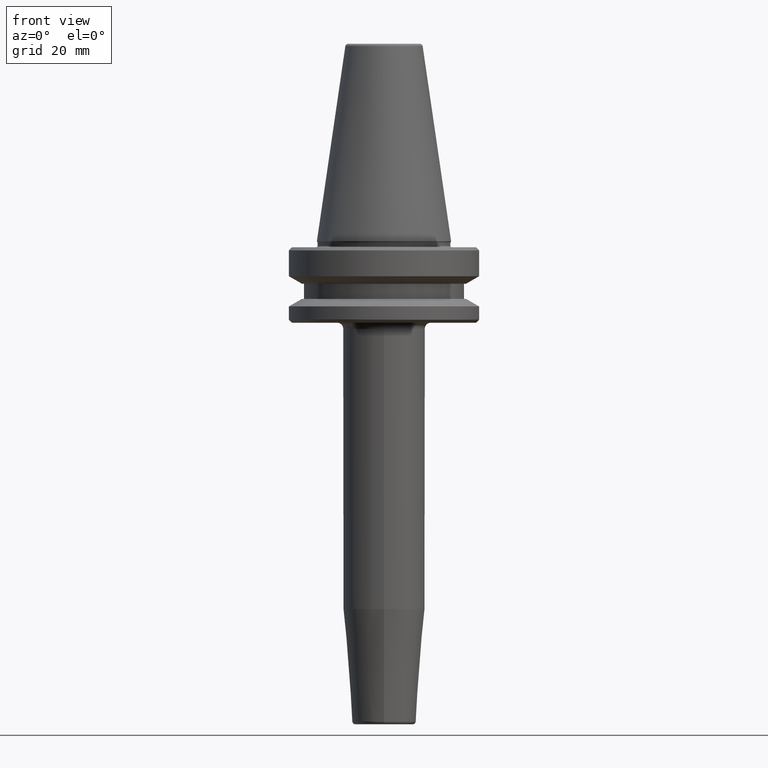
[diagram: clean part render]
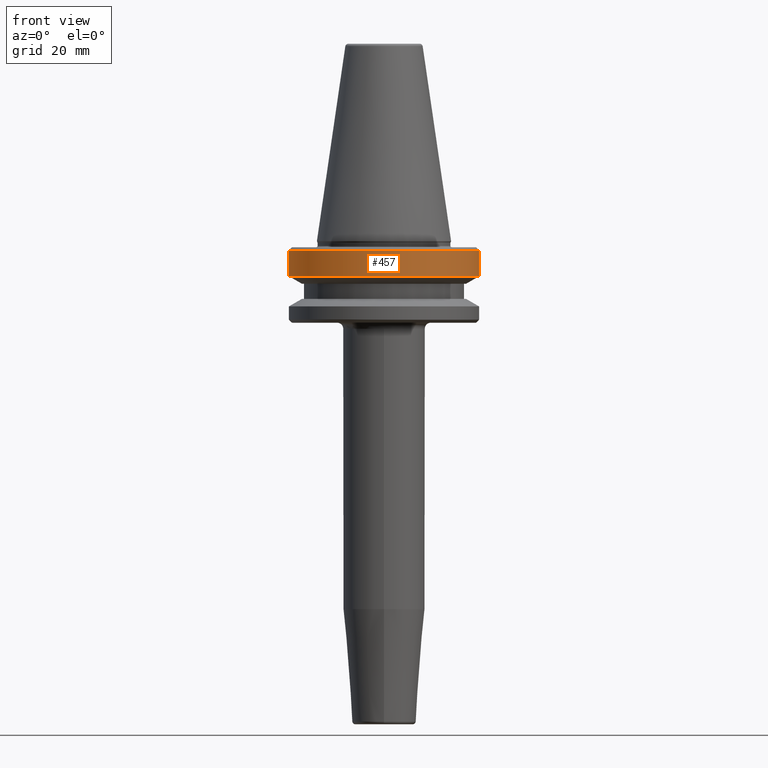
[diagram: same view with one face highlighted and labeled with its STEP entity id]
A machine part, front view. The second image highlights one B-rep face of the part: STEP entity #457.
In plain terms, the highlighted cylindrical surface (partial cylindrical patch) has radius 31.5 mm, axis along (-0, -0, 1).
Its self-contained STEP definition (entity closure, byte-faithful):
#85 = CARTESIAN_POINT ( 'NONE',  ( 0.0000000000000000000, 0.0000000000000000000, -3.165685424949243700 ) ) ;
#98 = CARTESIAN_POINT ( 'NONE',  ( 31.50000000000000000, 0.0000000000000000000, 69.75694866325665100 ) ) ;
#175 = EDGE_CURVE ( 'NONE', #1184, #1096, #1100, .T. ) ;
#215 = EDGE_CURVE ( 'NONE', #742, #900, #764, .T. ) ;
#240 = CARTESIAN_POINT ( 'NONE',  ( -31.49999999999999300, 3.857637417314161900E-015, -3.165685424949243700 ) ) ;
#249 = EDGE_LOOP ( 'NONE', ( #940, #1235, #1112, #560 ) ) ;
#251 = FACE_OUTER_BOUND ( 'NONE', #249, .T. ) ;
#283 = LINE ( 'NONE', #717, #788 ) ;
#288 = AXIS2_PLACEMENT_3D ( 'NONE', #85, #643, #1088 ) ;
#454 = VECTOR ( 'NONE', #787, 1000.000000000000000 ) ;
#457 = ADVANCED_FACE ( 'NONE', ( #251 ), #708, .T. ) ;
#494 = CARTESIAN_POINT ( 'NONE',  ( 31.50000000000000000, 0.0000000000000000000, -11.59985799368323700 ) ) ;
#511 = EDGE_CURVE ( 'NONE', #1096, #900, #720, .T. ) ;
#553 = DIRECTION ( 'NONE',  ( 1.000000000000000000, 0.0000000000000000000, 0.0000000000000000000 ) ) ;
#560 = ORIENTED_EDGE ( 'NONE', *, *, #215, .F. ) ;
#562 = DIRECTION ( 'NONE',  ( -0.0000000000000000000, -0.0000000000000000000, 1.000000000000000000 ) ) ;
#636 = CARTESIAN_POINT ( 'NONE',  ( 0.0000000000000000000, 0.0000000000000000000, -11.59985799368323700 ) ) ;
#643 = DIRECTION ( 'NONE',  ( -0.0000000000000000000, -0.0000000000000000000, 1.000000000000000000 ) ) ;
#660 = AXIS2_PLACEMENT_3D ( 'NONE', #661, #749, #817 ) ;
#661 = CARTESIAN_POINT ( 'NONE',  ( 0.0000000000000000000, 0.0000000000000000000, 69.75694866325665100 ) ) ;
#708 = CYLINDRICAL_SURFACE ( 'NONE', #660, 31.50000000000000000 ) ;
#717 = CARTESIAN_POINT ( 'NONE',  ( -31.50000000000000000, 3.857637417314162700E-015, 69.75694866325665100 ) ) ;
#720 = LINE ( 'NONE', #98, #454 ) ;
#742 = VERTEX_POINT ( 'NONE', #240 ) ;
#749 = DIRECTION ( 'NONE',  ( -0.0000000000000000000, -0.0000000000000000000, 1.000000000000000000 ) ) ;
#764 = CIRCLE ( 'NONE', #288, 31.49999999999999300 ) ;
#779 = EDGE_CURVE ( 'NONE', #1184, #742, #283, .T. ) ;
#787 = DIRECTION ( 'NONE',  ( -0.0000000000000000000, -0.0000000000000000000, 1.000000000000000000 ) ) ;
#788 = VECTOR ( 'NONE', #838, 1000.000000000000000 ) ;
#817 = DIRECTION ( 'NONE',  ( 1.000000000000000000, 0.0000000000000000000, 0.0000000000000000000 ) ) ;
#838 = DIRECTION ( 'NONE',  ( -0.0000000000000000000, -0.0000000000000000000, 1.000000000000000000 ) ) ;
#900 = VERTEX_POINT ( 'NONE', #923 ) ;
#923 = CARTESIAN_POINT ( 'NONE',  ( 31.49999999999999300, 0.0000000000000000000, -3.165685424949243700 ) ) ;
#940 = ORIENTED_EDGE ( 'NONE', *, *, #779, .F. ) ;
#987 = CARTESIAN_POINT ( 'NONE',  ( -31.50000000000000000, 3.857637417314162700E-015, -11.59985799368323700 ) ) ;
#1088 = DIRECTION ( 'NONE',  ( 1.000000000000000000, 0.0000000000000000000, 0.0000000000000000000 ) ) ;
#1096 = VERTEX_POINT ( 'NONE', #494 ) ;
#1100 = CIRCLE ( 'NONE', #1247, 31.50000000000000000 ) ;
#1112 = ORIENTED_EDGE ( 'NONE', *, *, #511, .T. ) ;
#1184 = VERTEX_POINT ( 'NONE', #987 ) ;
#1235 = ORIENTED_EDGE ( 'NONE', *, *, #175, .T. ) ;
#1247 = AXIS2_PLACEMENT_3D ( 'NONE', #636, #562, #553 ) ;